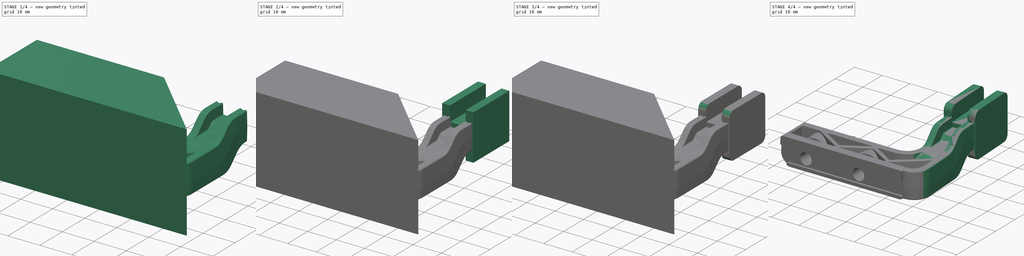
[diagram: build sequence overview — one tinted view per stage of 4, left to right]
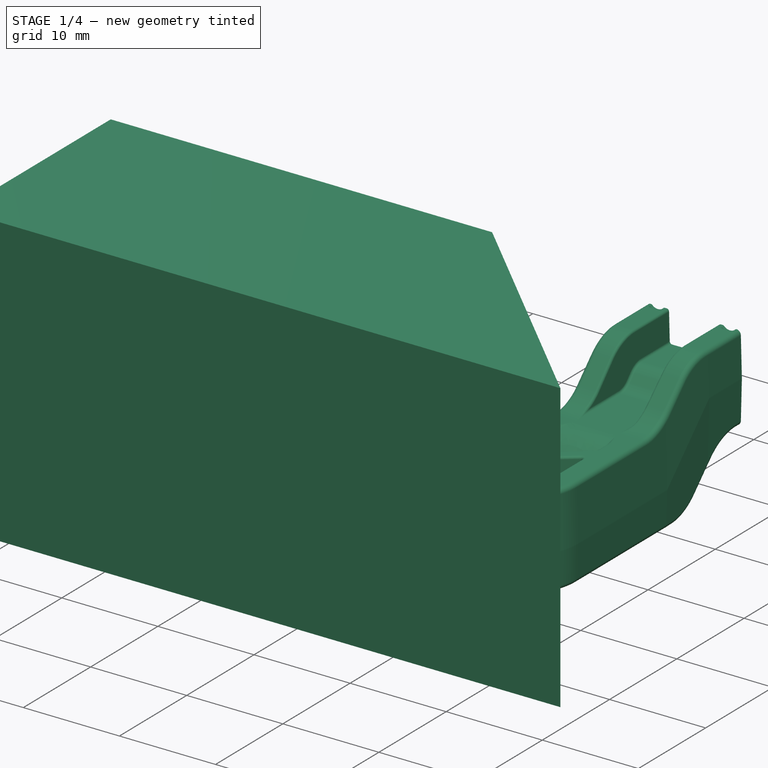
[diagram: stage 1 of 4 — iso view after this stage's code; geometry added in this stage tinted green]
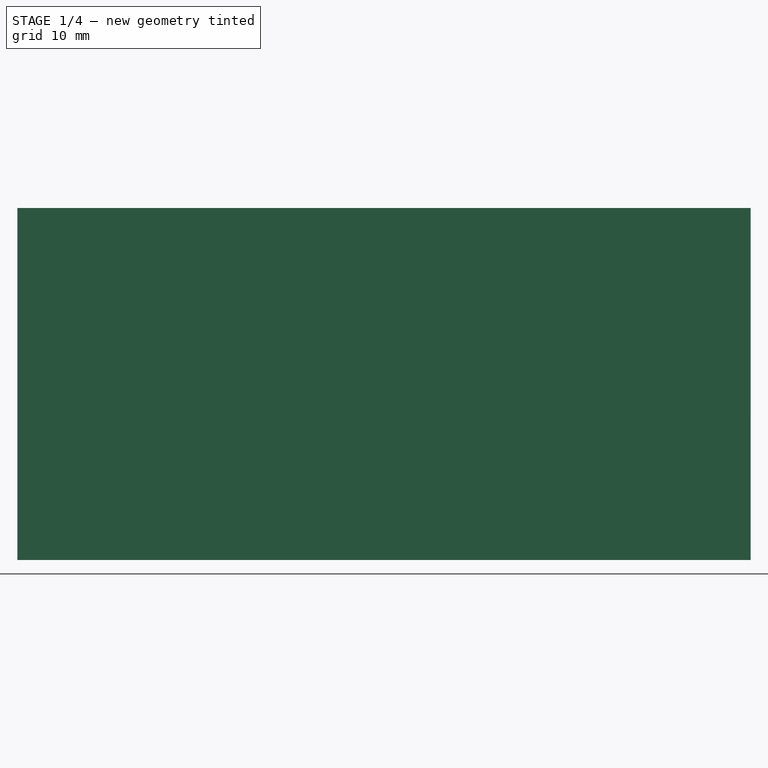
[diagram: stage 1 of 4 — front view after this stage's code; geometry added in this stage tinted green]
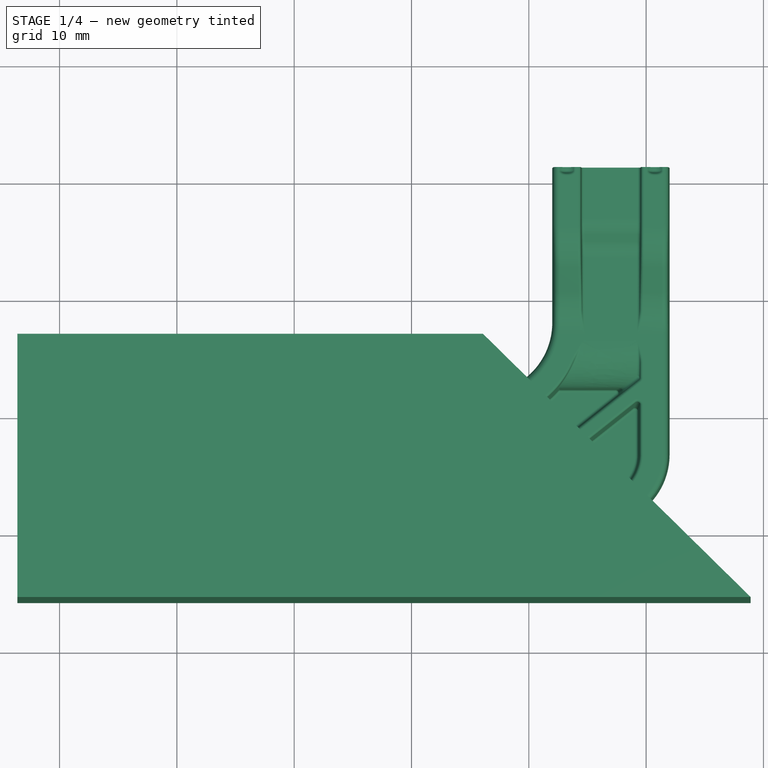
[diagram: stage 1 of 4 — top view after this stage's code; geometry added in this stage tinted green]
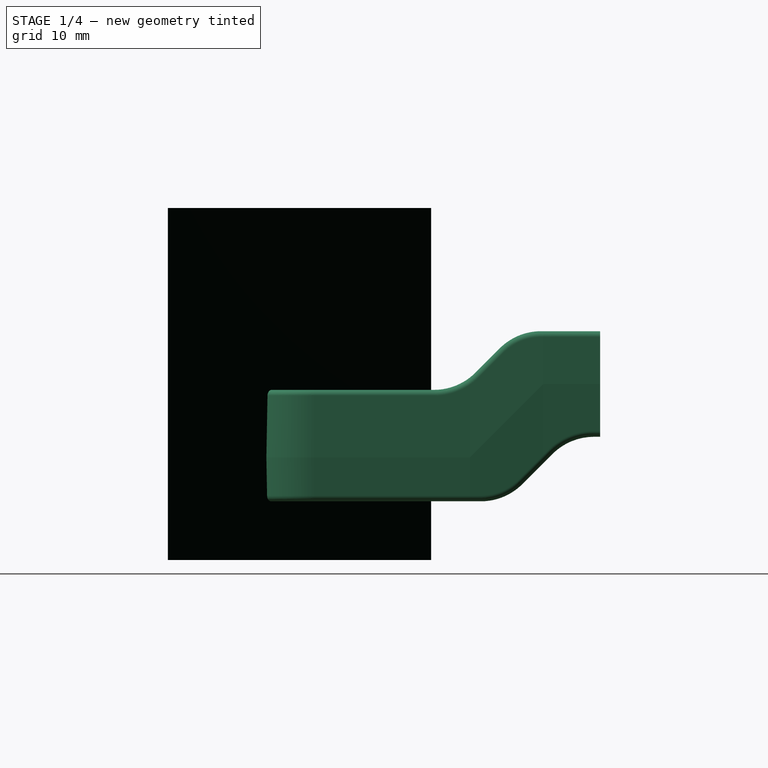
[diagram: stage 1 of 4 — right view after this stage's code; geometry added in this stage tinted green]
FCSTD DOCUMENT  (FreeCAD 0.16R6707 (Git))
Label: bxgr_optskin02b-v3.1
License: All rights reserved
LicenseURL: http://en.wikipedia.org/wiki/All_rights_reserved
objects: Sketcher::SketchObject×6, Part::Feature×3, Part::Extrusion×3, PartDesign::Pad×2, Part::Cut×2, Part::Fillet×2, Part::MultiCommon×2, PartDesign::Pocket×1, Part::MultiFuse×1, Part::Compound×1
note: 26 computed .brp shape members not serialized (recipe doc carries the construction recipe); baked Part::Feature solids carry a one-line shape summary decoded from their .brp

FEATURE [Part::Feature] _0019306_B_Customer
  shape: bbox 51.54 x 73.73 x 14.81 mm, 851 faces, 0 solids (baked)
FEATURE [Part::Feature] _0019306_B_Customer_solid  label="_0019306_B_Customer (Solid)"
  shape: bbox 51.54 x 73.73 x 14.81 mm, 851 faces (baked)
FEATURE [Sketcher::SketchObject] Sketch
  Placement = pos=(0,0,0) rot=(0.57735,0.57735,0.57735;2.0944rad)
  sketch-geometry (4):
    g0: LineSegment StartX=77.4491 StartY=8.90924 StartZ=0 EndX=31.0957 EndY=8.90924 EndZ=0
    g1: LineSegment StartX=31.0957 StartY=8.90924 StartZ=0 EndX=31.0957 EndY=-10.0547 EndZ=0
    g2: LineSegment StartX=31.0957 StartY=-10.0547 StartZ=0 EndX=77.4491 EndY=-10.0547 EndZ=0
    g3: LineSegment StartX=77.4491 StartY=-10.0547 StartZ=0 EndX=77.4491 EndY=8.90924 EndZ=0
  constraints (8):
    c: Coincident(g0,g1)
    c: Coincident(g1,g2)
    c: Coincident(g2,g3)
    c: Coincident(g3,g0)
    c: Horizontal(g0)
    c: Horizontal(g2)
    c: Vertical(g1)
    c: Vertical(g3)
FEATURE [PartDesign::Pad] Pad
  Length = 25
  Length2 = 100
  Placement = pos=(0,0,0) rot=(0.57735,0.57735,0.57735;2.0944rad)
  Sketch = -> Sketch
  Type = 0
FEATURE [Part::Cut] Cut
  Base = -> _0019306_B_Customer_solid
  Tool = -> Pad
FEATURE [Sketcher::SketchObject] Sketch004
  Placement = pos=(0,0,-11) rot=(0,0,1;0rad)
  sketch-geometry (4):
    g0: LineSegment StartX=-8.31947 StartY=6.84673 StartZ=0 EndX=-10.7379 EndY=6.84673 EndZ=0
    g1: LineSegment StartX=-10.7379 StartY=6.84673 StartZ=0 EndX=-10.7379 EndY=2.38529 EndZ=0
    g2: LineSegment StartX=-10.7379 StartY=2.38529 StartZ=0 EndX=-8.31947 EndY=2.38529 EndZ=0
    g3: LineSegment StartX=-8.31947 StartY=2.38529 StartZ=0 EndX=-8.31947 EndY=6.84673 EndZ=0
  constraints (8):
    c: Coincident(g0,g1)
    c: Coincident(g1,g2)
    c: Coincident(g2,g3)
    c: Coincident(g3,g0)
    c: Horizontal(g0)
    c: Horizontal(g2)
    c: Vertical(g1)
    c: Vertical(g3)
FEATURE [PartDesign::Pad] Pad001
  Length = 1
  Length2 = 100
  Placement = pos=(0,0,-11) rot=(0,0,1;0rad)
  Sketch = -> Sketch004
  Type = 0
FEATURE [Sketcher::SketchObject] Sketch005
  sketch-geometry (4):
    g0: LineSegment StartX=6.094 StartY=16.692 StartZ=0 EndX=28.9098 EndY=-5.74668 EndZ=0
    g1: LineSegment StartX=28.9098 StartY=-5.74668 StartZ=0 EndX=-33.598 EndY=-5.74668 EndZ=0
    g2: LineSegment StartX=-33.598 StartY=-5.74668 StartZ=0 EndX=-33.598 EndY=16.692 EndZ=0
    g3: LineSegment StartX=-33.598 StartY=16.692 StartZ=0 EndX=6.094 EndY=16.692 EndZ=0
  constraints (11):
    c: Coincident(g0,g1)
    c: Horizontal(g1)
    c: Coincident(g1,g2)
    c: Vertical(g2)
    c: Coincident(g2,g3)
    c: Coincident(g3,g0)
    c: Horizontal(g3)
    c: DistanceX(g-1,g0) = 6.094
    c: DistanceY(g-1,g0) = 16.692
    c: DistanceX(g-1,g0) = 28.9098
    c: DistanceY(g0,g-1) = 5.74668
FEATURE [Sketcher::SketchObject] Sketch006
  sketch-geometry (4):
    g0: LineSegment StartX=6.094 StartY=16.692 StartZ=0 EndX=28.9098 EndY=-5.74668 EndZ=0
    g1: LineSegment StartX=28.9098 StartY=-5.74668 StartZ=0 EndX=28.9098 EndY=54.4421 EndZ=0
    g2: LineSegment StartX=28.9098 StartY=54.4421 StartZ=0 EndX=6.094 EndY=54.4421 EndZ=0
    g3: LineSegment StartX=6.094 StartY=54.4421 StartZ=0 EndX=6.094 EndY=16.692 EndZ=0
  constraints (11):
    c: Coincident(g0,g1)
    c: Coincident(g1,g2)
    c: Coincident(g2,g3)
    c: Coincident(g3,g0)
    c: DistanceX(g-1,g0) = 6.094
    c: DistanceY(g-1,g0) = 16.692
    c: DistanceX(g-1,g0) = 28.9098
    c: DistanceY(g0,g-1) = 5.74668
    c: Vertical(g3)
    c: Vertical(g1)
    c: Horizontal(g2)
FEATURE [Part::Extrusion] Extrude001
  Base = -> Sketch005
  Dir = (0,0,-30)
  Placement = pos=(0,0,15) rot=(0,0,1;0rad)
  Solid = true
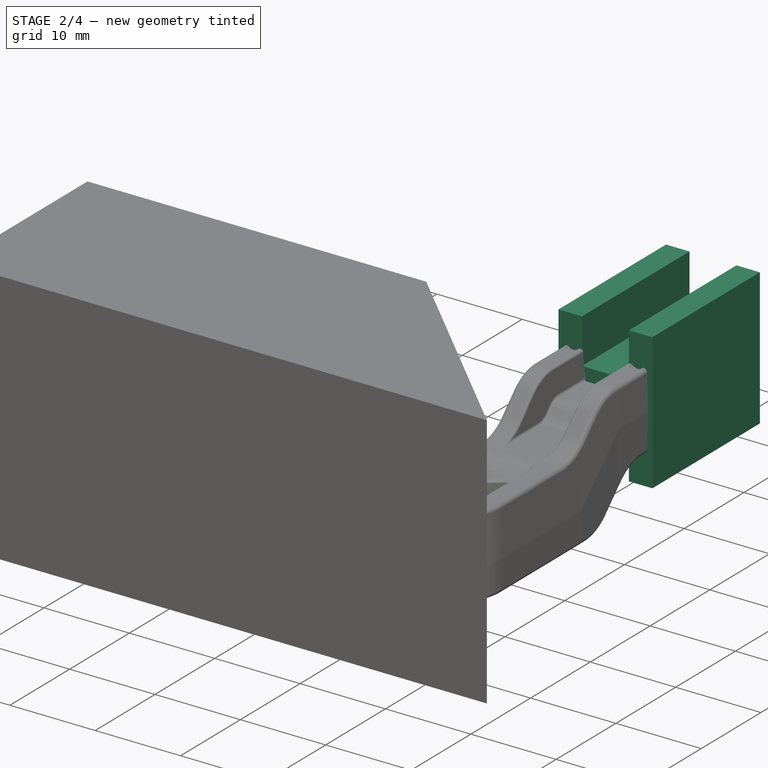
[diagram: stage 2 of 4 — iso view after this stage's code; geometry added in this stage tinted green]
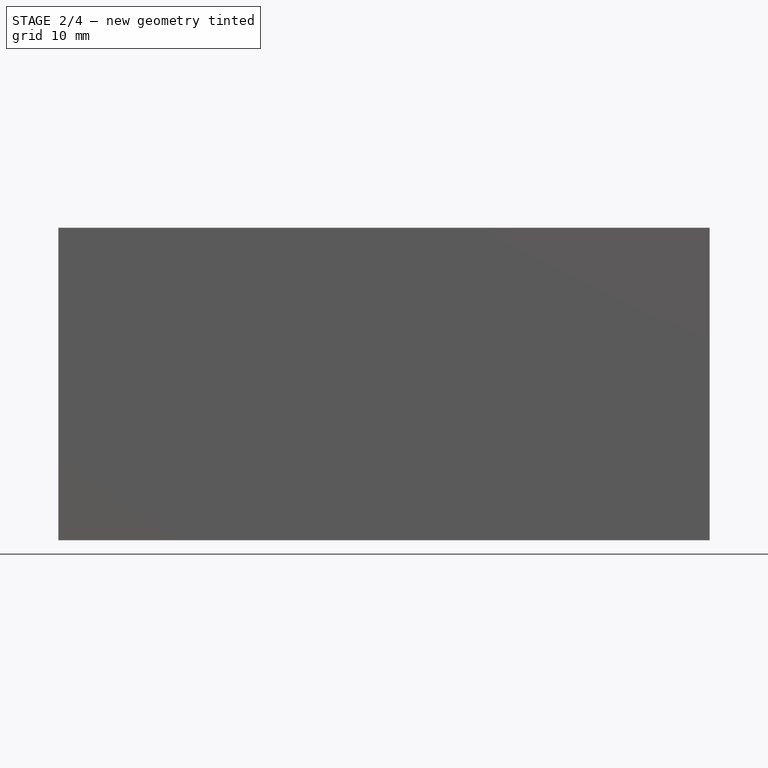
[diagram: stage 2 of 4 — front view after this stage's code; geometry added in this stage tinted green]
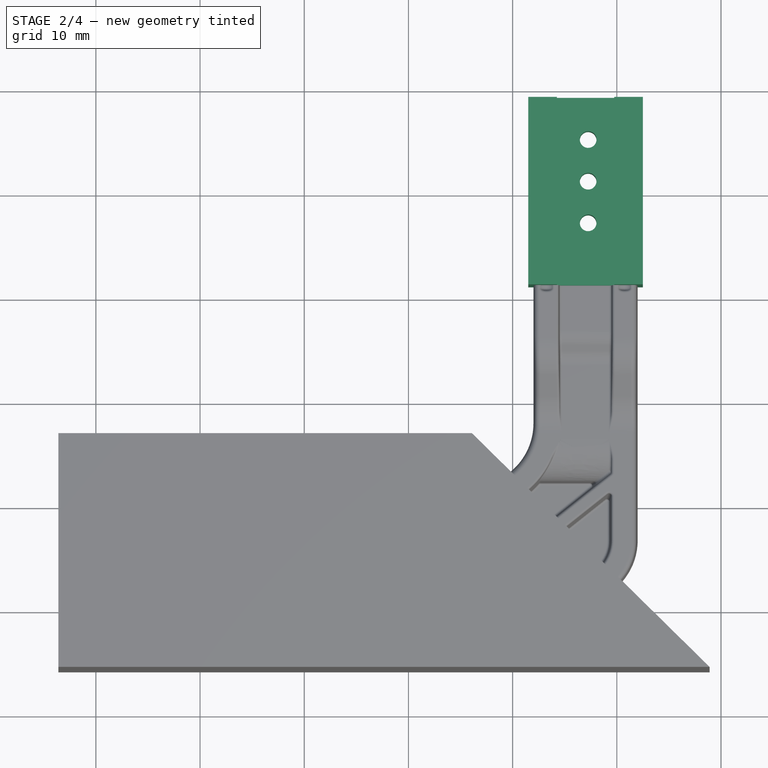
[diagram: stage 2 of 4 — top view after this stage's code; geometry added in this stage tinted green]
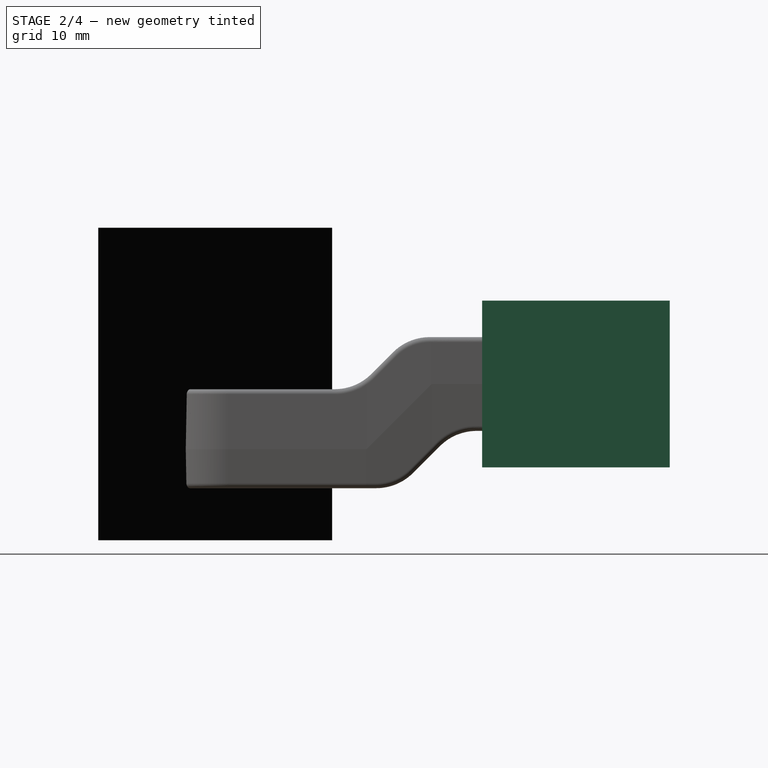
[diagram: stage 2 of 4 — right view after this stage's code; geometry added in this stage tinted green]
FEATURE [Sketcher::SketchObject] Sketch001
  Placement = pos=(0,31.0957,0) rot=(0,0.707107,0.707107;3.14159rad)
  Support = -> Cut [Face4]
  sketch-geometry (14):
    g0: LineSegment StartX=-19.75 StartY=2.75 StartZ=0 EndX=-14.25 EndY=2.75 EndZ=0
    g1: LineSegment StartX=-11.5 StartY=1.4 StartZ=0 EndX=-11.5 EndY=-1.4 EndZ=0
    g2: LineSegment StartX=-14.25 StartY=-2.75 StartZ=0 EndX=-19.75 EndY=-2.75 EndZ=0
    g3: LineSegment StartX=-22.5 StartY=-1.4 StartZ=0 EndX=-22.5 EndY=5.57674 EndZ=0
    g4: LineSegment StartX=-22.5 StartY=8 StartZ=0 EndX=-19.75 EndY=8 EndZ=0
    g5: LineSegment StartX=-19.75 StartY=8 StartZ=0 EndX=-19.75 EndY=2.75 EndZ=0
    g6: LineSegment StartX=-19.75 StartY=-8 StartZ=0 EndX=-22.5 EndY=-8 EndZ=0
    g7: LineSegment StartX=-22.5 StartY=-8 StartZ=0 EndX=-22.5 EndY=8 EndZ=0
    g8: LineSegment StartX=-14.25 StartY=-8 StartZ=0 EndX=-11.5 EndY=-8 EndZ=0
    g9: LineSegment StartX=-11.5 StartY=-8 StartZ=0 EndX=-11.5 EndY=8 EndZ=0
    g10: LineSegment StartX=-11.5 StartY=8 StartZ=0 EndX=-14.25 EndY=8 EndZ=0
    g11: LineSegment StartX=-14.25 StartY=8 StartZ=0 EndX=-14.25 EndY=2.75 EndZ=0
    g12: LineSegment StartX=-19.75 StartY=-2.75 StartZ=0 EndX=-19.75 EndY=-8 EndZ=0
    g13: LineSegment StartX=-14.25 StartY=-2.75 StartZ=0 EndX=-14.25 EndY=-8 EndZ=0
  constraints (38):
    c: Horizontal(g0)
    c: Horizontal(g2)
    c: Vertical(g1)
    c: Vertical(g3)
    c: Coincident(g4,g5)
    c: Coincident(g12,g6)
    c: Coincident(g6,g7)
    c: Coincident(g7,g4)
    c: Horizontal(g4)
    c: Horizontal(g6)
    c: Vertical(g5)
    c: Vertical(g7)
    c: Coincident(g8,g9)
    c: Coincident(g9,g10)
    c: Coincident(g10,g11)
    c: Coincident(g13,g8)
    c: Horizontal(g8)
    c: Horizontal(g10)
    c: Vertical(g9)
    c: Vertical(g11)
    c: PointOnObject(g3,g7)
    c: PointOnObject(g1,g9)
    c: DistanceX(g4,g4) = 2.75
    c: DistanceX(g10,g9) = 2.75
    c: DistanceX(g4,g9) = 11
    c: DistanceY(g6,g4) = 16
    c: DistanceY(g8,g-1) = 8
    c: DistanceY(g8,g9) = 16
    c: DistanceY(g12,g8) = 0
    c: Coincident(g5,g0)
    c: Tangent(g5,g12)
    c: Coincident(g2,g12)
    c: Coincident(g13,g2)
    c: Tangent(g11,g13)
    c: Coincident(g0,g11)
    c: DistanceY(g2,g0) = 5.5
    c: DistanceY(g0,g4) = 5.25
    c: DistanceX(g9,g-1) = 11.5
FEATURE [Part::Extrusion] Extrude
  Base = -> Sketch001
  Dir = (0,18,0)
  Solid = true
FEATURE [Sketcher::SketchObject] Sketch003
  ExternalGeometry = -> [Extrude]
  Placement = pos=(0,0,2.75) rot=(0,0,1;0rad)
  Support = -> Extrude [Face7]
  sketch-geometry (3):
    g0: Circle CenterX=17.25 CenterY=45.0957 CenterZ=0 NormalX=0 NormalY=0 NormalZ=1 Radius=0.8
    g1: Circle CenterX=17.25 CenterY=41.0957 CenterZ=0 NormalX=0 NormalY=0 NormalZ=1 Radius=0.8
    g2: Circle CenterX=17.25 CenterY=37.0957 CenterZ=0 NormalX=0 NormalY=0 NormalZ=1 Radius=0.8
  constraints (9):
    c: Radius(g2) = 0.8
    c: Equal(g2,g1)
    c: Equal(g2,g0)
    c: DistanceY(g0,g-3) = 4
    c: DistanceY(g1,g0) = 4
    c: DistanceY(g2,g1) = 4
    c: DistanceX(g1,g0) = 0
    c: DistanceX(g2,g1) = 0
    c: DistanceX(g0,g-3) = 2.5
FEATURE [PartDesign::Pocket] Pocket
  Length = 6
  Sketch = -> Sketch003
  Type = 0
FEATURE [Part::MultiFuse] Fusion
  Shapes = -> [Pocket,Cut]
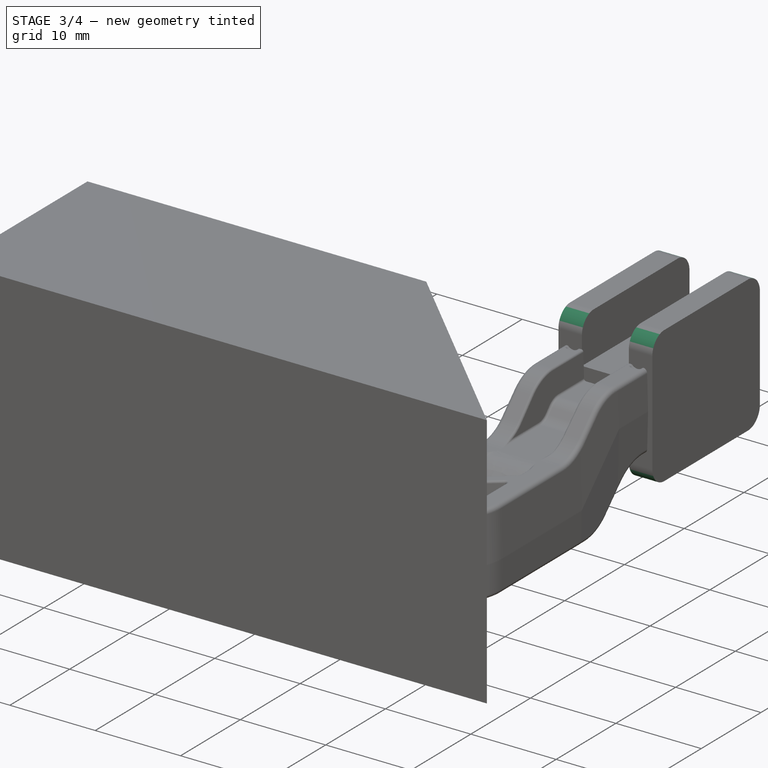
[diagram: stage 3 of 4 — iso view after this stage's code; geometry added in this stage tinted green]
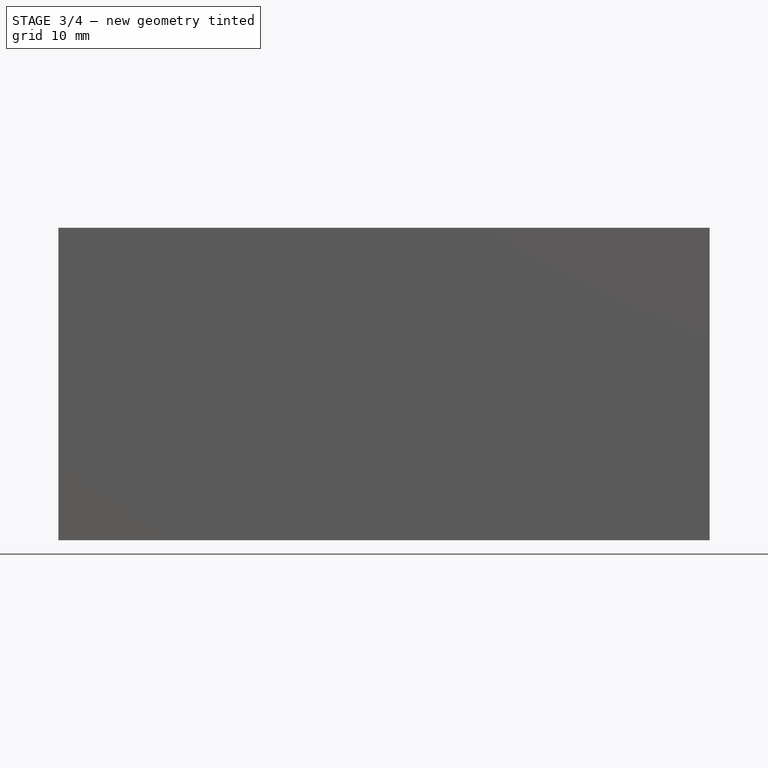
[diagram: stage 3 of 4 — front view after this stage's code; geometry added in this stage tinted green]
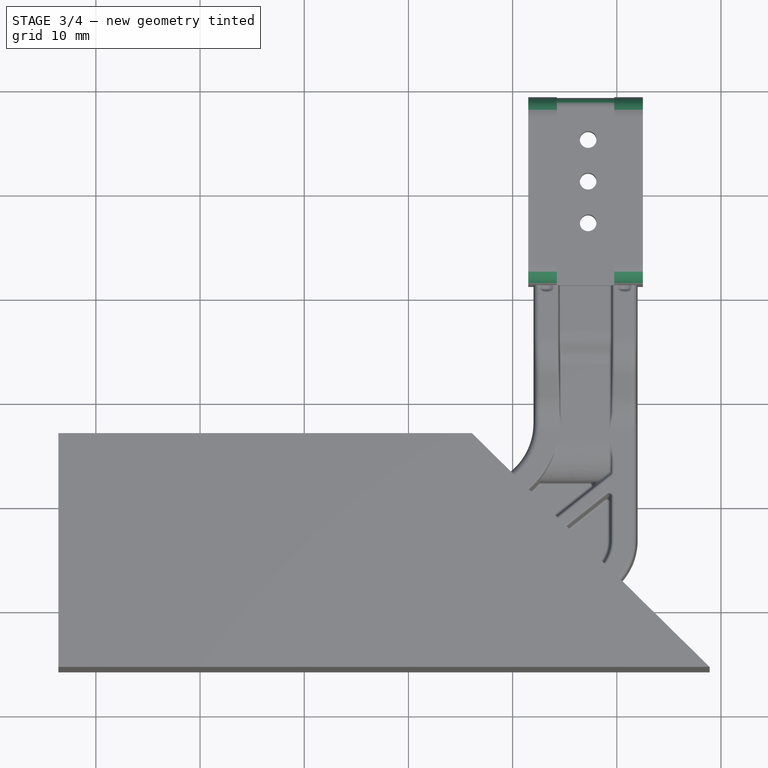
[diagram: stage 3 of 4 — top view after this stage's code; geometry added in this stage tinted green]
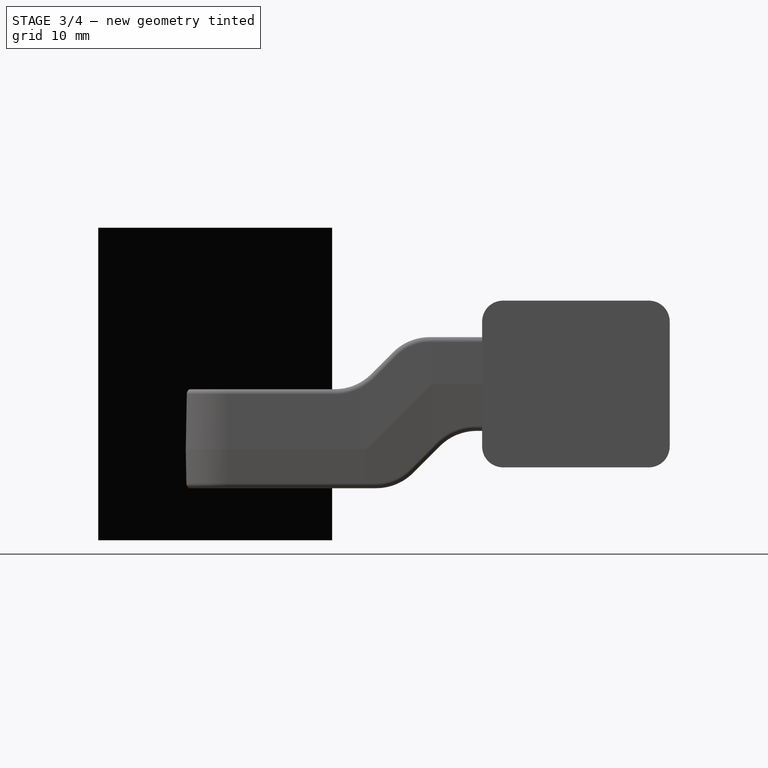
[diagram: stage 3 of 4 — right view after this stage's code; geometry added in this stage tinted green]
FEATURE [Part::Cut] Cut001
  Base = -> Fusion
  Tool = -> Pad001
FEATURE [Part::Fillet] Fillet
  Base = -> Cut001
  Edges = 8 edges r=2: [Edge3,Edge5,Edge9,Edge11,Edge25,Edge29,Edge44,Edge48]
FEATURE [Part::Fillet] Fillet001
  Base = -> Fillet
  Edges = 2 edges r=1: [Edge3,Edge10]
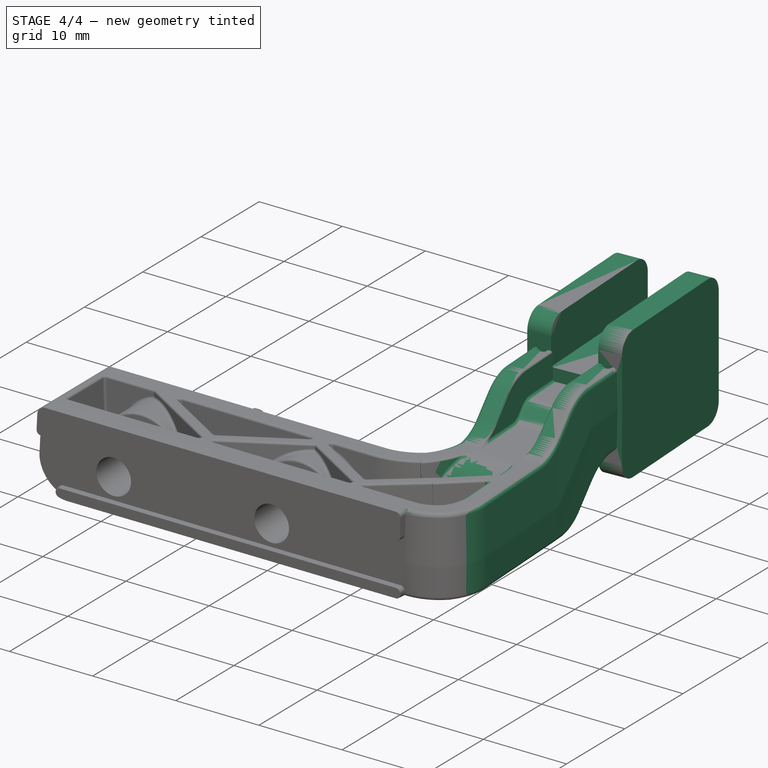
[diagram: stage 4 of 4 — iso view after this stage's code; geometry added in this stage tinted green]
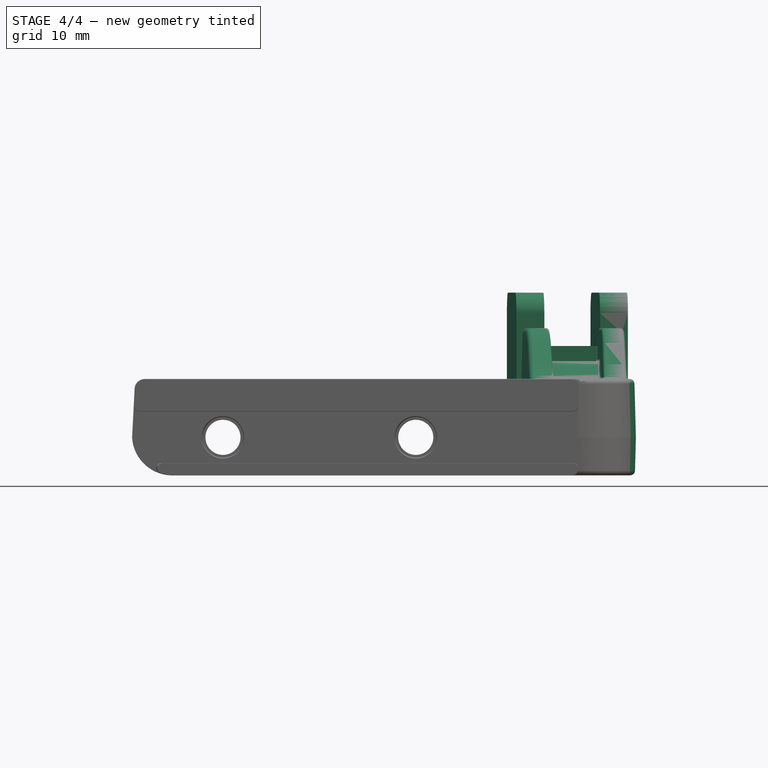
[diagram: stage 4 of 4 — front view after this stage's code; geometry added in this stage tinted green]
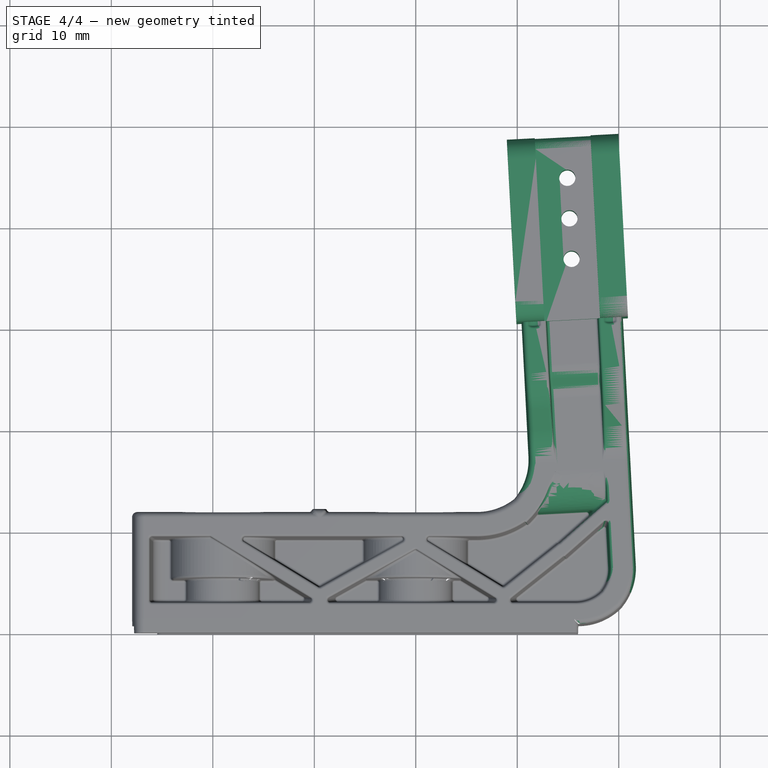
[diagram: stage 4 of 4 — top view after this stage's code; geometry added in this stage tinted green]
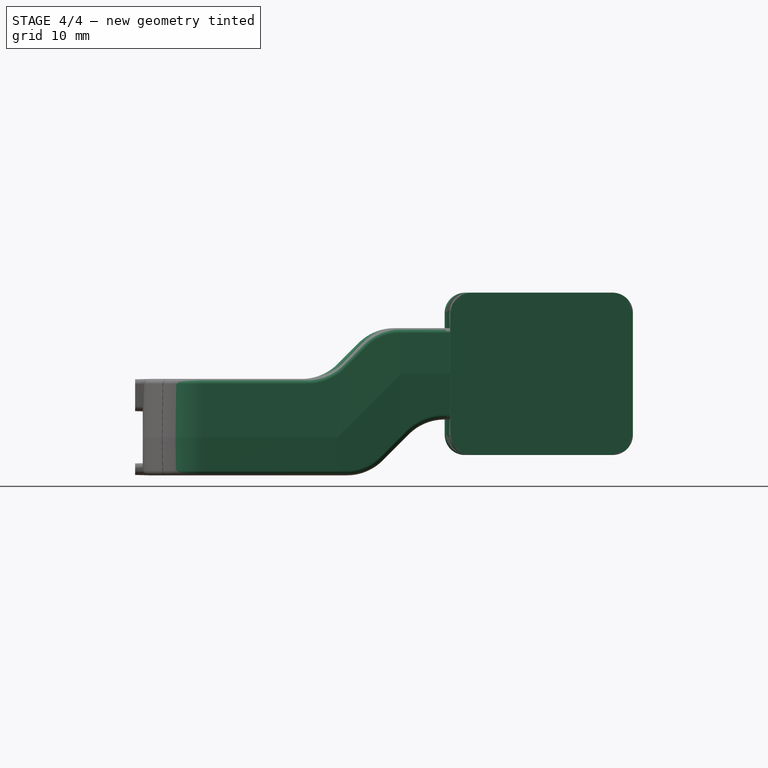
[diagram: stage 4 of 4 — right view after this stage's code; geometry added in this stage tinted green]
FEATURE [Part::Extrusion] Extrude002
  Base = -> Sketch006
  Dir = (0,0,-30)
  Placement = pos=(0,0,15) rot=(0,0,1;0rad)
  Solid = true
FEATURE [Part::Feature] Fillet001001  label="Fillet002"
  shape: bbox 50.84 x 73.7 x 18.25 mm, 566 faces (baked)
FEATURE [Part::MultiCommon] Common
  Placement = pos=(0.063,-1.15,0) rot=(0,0,1;0.05236rad)
  Shapes = -> [Extrude002,Fillet001001]
FEATURE [Part::MultiCommon] Common001
  Shapes = -> [Extrude001,Fillet001]
FEATURE [Part::Compound] Compound
  Links = -> [Common001,Common]
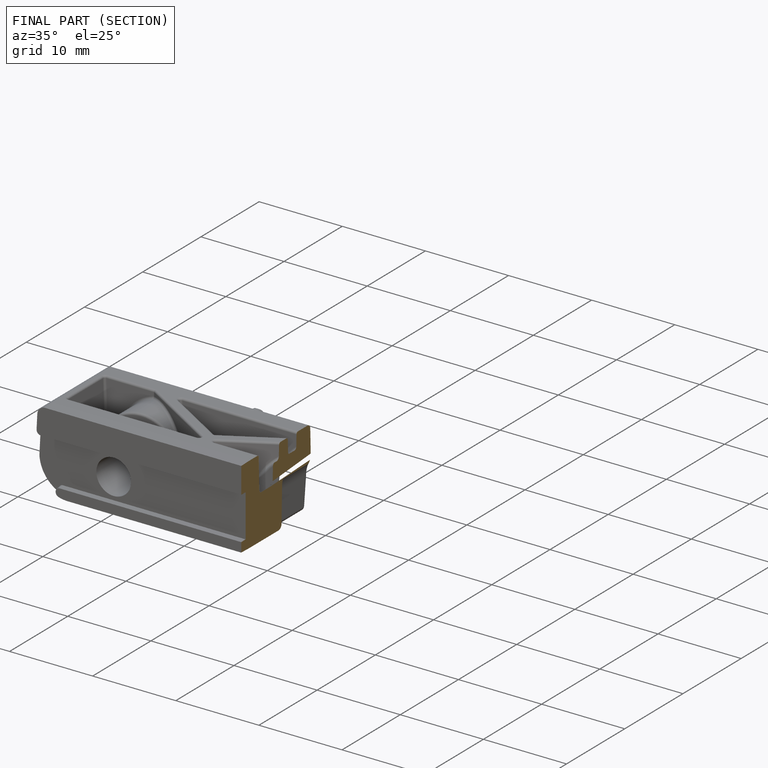
[diagram: finished part — half-section view (interior)]
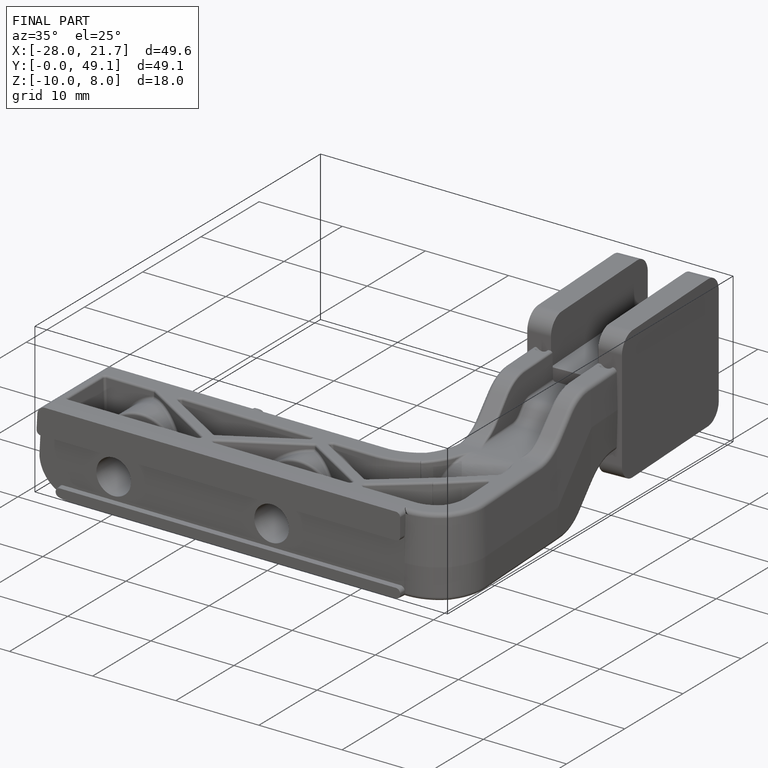
[diagram: finished part — iso view with bounding-box wireframe]
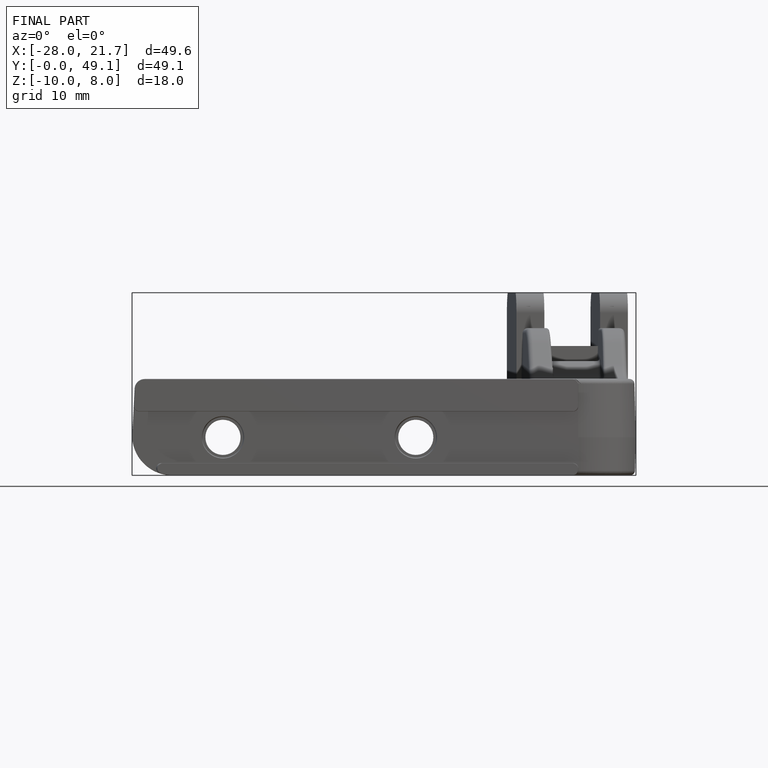
[diagram: finished part — front view with bounding-box wireframe]
